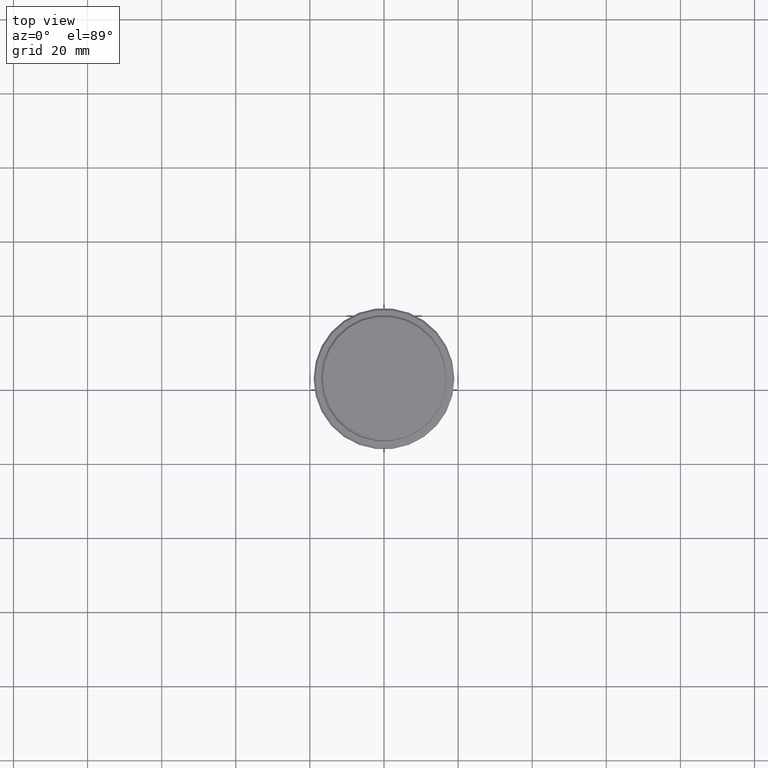
[diagram: clean part render]
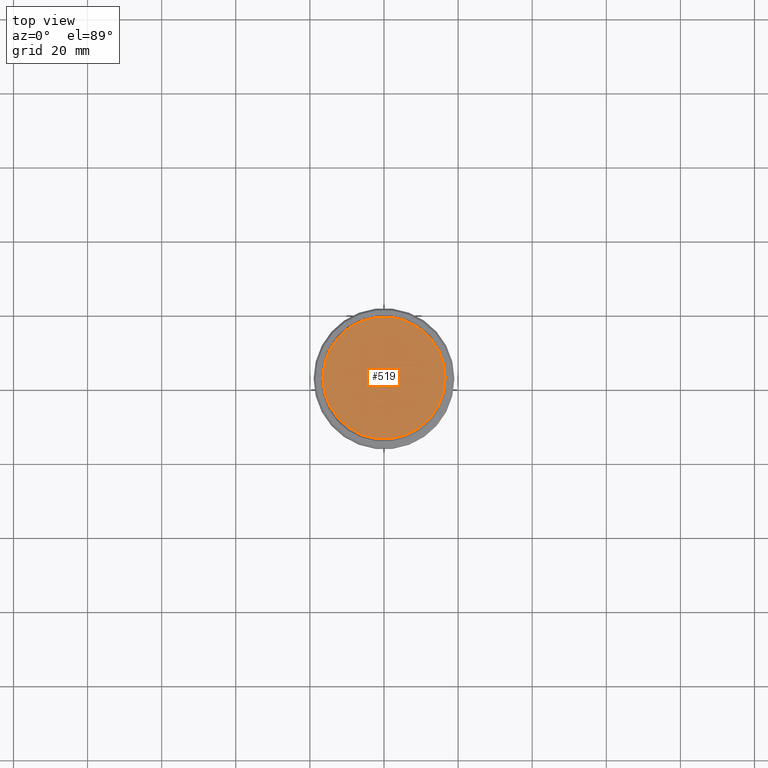
[diagram: same view with one face highlighted and labeled with its STEP entity id]
A machine part, top view. The second image highlights one B-rep face of the part: STEP entity #519.
In plain terms, the highlighted planar face has unit normal (0, -0, 1).
Its self-contained STEP definition (entity closure, byte-faithful):
#81 = EDGE_CURVE ( 'NONE', #666, #621, #676, .T. ) ;
#120 = FACE_OUTER_BOUND ( 'NONE', #560, .T. ) ;
#215 = ORIENTED_EDGE ( 'NONE', *, *, #81, .T. ) ;
#453 = CARTESIAN_POINT ( 'NONE',  ( -16.50000000000001421, 0.000000000000000000, 0.000000000000000000 ) ) ;
#519 = ADVANCED_FACE ( 'NONE', ( #120 ), #1193, .T. ) ;
#550 = CARTESIAN_POINT ( 'NONE',  ( 0.000000000000000000, 0.000000000000000000, 0.000000000000000000 ) ) ;
#560 = EDGE_LOOP ( 'NONE', ( #215, #724 ) ) ;
#578 = CARTESIAN_POINT ( 'NONE',  ( 0.000000000000000000, 0.000000000000000000, 0.000000000000000000 ) ) ;
#610 = DIRECTION ( 'NONE',  ( -0.000000000000000000, -0.000000000000000000, 1.000000000000000000 ) ) ;
#621 = VERTEX_POINT ( 'NONE', #1124 ) ;
#666 = VERTEX_POINT ( 'NONE', #453 ) ;
#676 = CIRCLE ( 'NONE', #1324, 16.50000000000001421 ) ;
#711 = CARTESIAN_POINT ( 'NONE',  ( 0.000000000000000000, 0.000000000000000000, 0.000000000000000000 ) ) ;
#724 = ORIENTED_EDGE ( 'NONE', *, *, #733, .T. ) ;
#733 = EDGE_CURVE ( 'NONE', #621, #666, #1163, .T. ) ;
#909 = AXIS2_PLACEMENT_3D ( 'NONE', #550, #1016, #1186 ) ;
#923 = DIRECTION ( 'NONE',  ( -0.000000000000000000, -0.000000000000000000, 1.000000000000000000 ) ) ;
#927 = DIRECTION ( 'NONE',  ( 1.000000000000000000, 0.000000000000000000, 0.000000000000000000 ) ) ;
#1016 = DIRECTION ( 'NONE',  ( 0.000000000000000000, -0.000000000000000000, 1.000000000000000000 ) ) ;
#1124 = CARTESIAN_POINT ( 'NONE',  ( 16.50000000000001421, 2.051283388571816887E-15, 0.000000000000000000 ) ) ;
#1159 = DIRECTION ( 'NONE',  ( 1.000000000000000000, 0.000000000000000000, 0.000000000000000000 ) ) ;
#1163 = CIRCLE ( 'NONE', #1276, 16.50000000000001421 ) ;
#1186 = DIRECTION ( 'NONE',  ( 1.000000000000000000, 0.000000000000000000, 0.000000000000000000 ) ) ;
#1193 = PLANE ( 'NONE',  #909 ) ;
#1276 = AXIS2_PLACEMENT_3D ( 'NONE', #578, #610, #927 ) ;
#1324 = AXIS2_PLACEMENT_3D ( 'NONE', #711, #923, #1159 ) ;